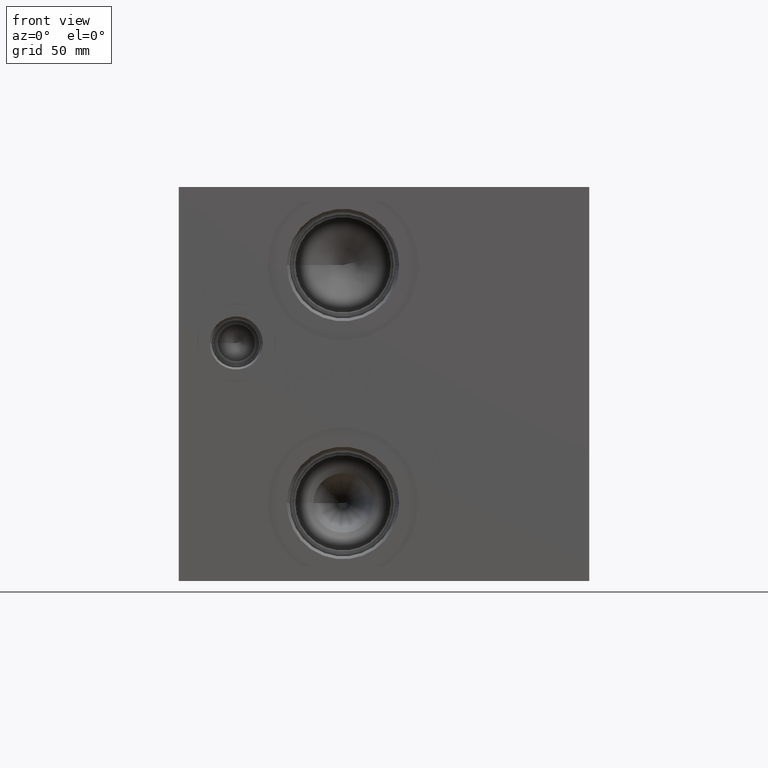
[diagram: clean part render]
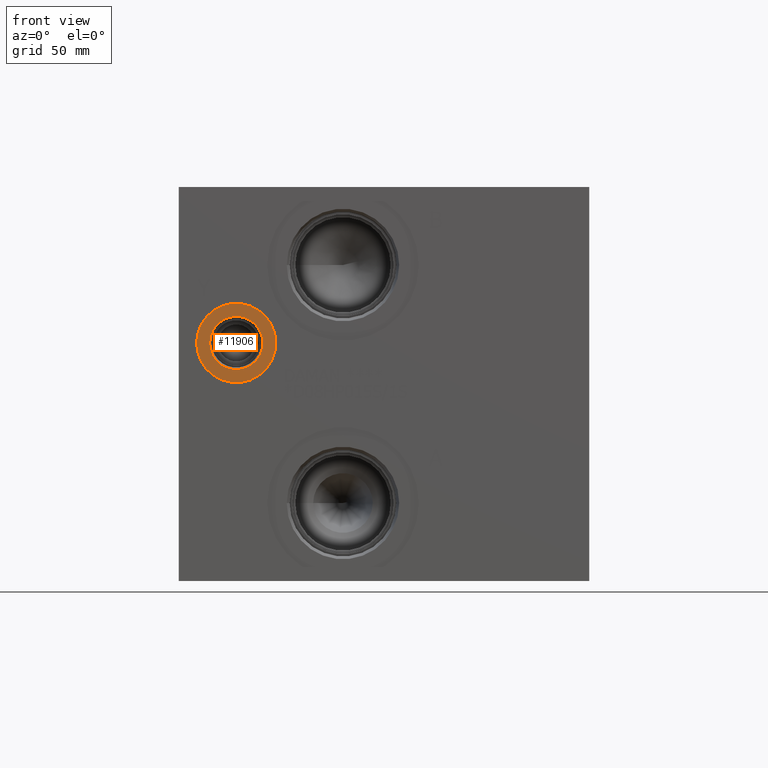
[diagram: same view with one face highlighted and labeled with its STEP entity id]
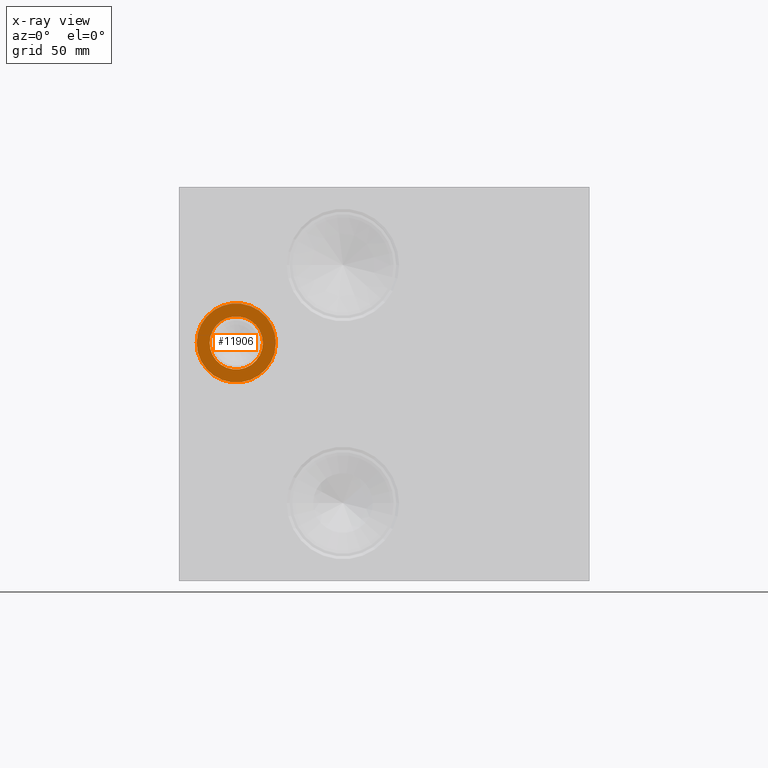
[diagram: x-ray of the same camera — body ghosted, the highlighted face saturated]
A machine part, front view. The second image highlights one B-rep face of the part: STEP entity #11906.
The next image is the same camera in x-ray: the body ghosted, the highlighted face saturated — about 0% of this face is hidden behind the body in this view.
In plain terms, the highlighted planar face has unit normal (0, 1, 0).
Its self-contained STEP definition (entity closure, byte-faithful):
#301=CIRCLE('',#12555,15.3162);
#302=CIRCLE('',#12556,15.3162);
#303=CIRCLE('',#12558,10.2997);
#304=CIRCLE('',#12559,10.2997);
#487=FACE_BOUND('',#2099,.T.);
#845=PLANE('',#12557);
#1408=FACE_OUTER_BOUND('',#2098,.T.);
#2098=EDGE_LOOP('',(#10394,#10395));
#2099=EDGE_LOOP('',(#10396,#10397));
#5677=VERTEX_POINT('',#20243);
#5678=VERTEX_POINT('',#20245);
#5679=VERTEX_POINT('',#20249);
#5680=VERTEX_POINT('',#20250);
#7291=EDGE_CURVE('',#5677,#5678,#301,.T.);
#7292=EDGE_CURVE('',#5678,#5677,#302,.T.);
#7293=EDGE_CURVE('',#5679,#5680,#303,.T.);
#7294=EDGE_CURVE('',#5680,#5679,#304,.T.);
#10394=ORIENTED_EDGE('',*,*,#7292,.F.);
#10395=ORIENTED_EDGE('',*,*,#7291,.F.);
#10396=ORIENTED_EDGE('',*,*,#7293,.T.);
#10397=ORIENTED_EDGE('',*,*,#7294,.T.);
#11906=ADVANCED_FACE('',(#1408,#487),#845,.F.);
#12555=AXIS2_PLACEMENT_3D('',#20246,#14904,#14905);
#12556=AXIS2_PLACEMENT_3D('',#20247,#14906,#14907);
#12557=AXIS2_PLACEMENT_3D('',#20248,#14908,#14909);
#12558=AXIS2_PLACEMENT_3D('',#20251,#14910,#14911);
#12559=AXIS2_PLACEMENT_3D('',#20252,#14912,#14913);
#14904=DIRECTION('center_axis',(0.,1.,0.));
#14905=DIRECTION('ref_axis',(1.,0.,0.));
#14906=DIRECTION('center_axis',(0.,1.,0.));
#14907=DIRECTION('ref_axis',(1.,0.,0.));
#14908=DIRECTION('center_axis',(0.,1.,0.));
#14909=DIRECTION('ref_axis',(0.,0.,1.));
#14910=DIRECTION('center_axis',(0.,1.,0.));
#14911=DIRECTION('ref_axis',(1.,0.,0.));
#14912=DIRECTION('center_axis',(0.,1.,0.));
#14913=DIRECTION('ref_axis',(1.,0.,0.));
#20243=CARTESIAN_POINT('',(6.9088,0.7874,92.075));
#20245=CARTESIAN_POINT('',(37.5412,0.7874,92.075));
#20246=CARTESIAN_POINT('Origin',(22.225,0.7874,92.075));
#20247=CARTESIAN_POINT('Origin',(22.225,0.7874,92.075));
#20248=CARTESIAN_POINT('Origin',(32.5247,0.7874,92.075));
#20249=CARTESIAN_POINT('',(32.5247,0.7874,92.075));
#20250=CARTESIAN_POINT('',(11.9253,0.7874,92.075));
#20251=CARTESIAN_POINT('Origin',(22.225,0.7874,92.075));
#20252=CARTESIAN_POINT('Origin',(22.225,0.7874,92.075));